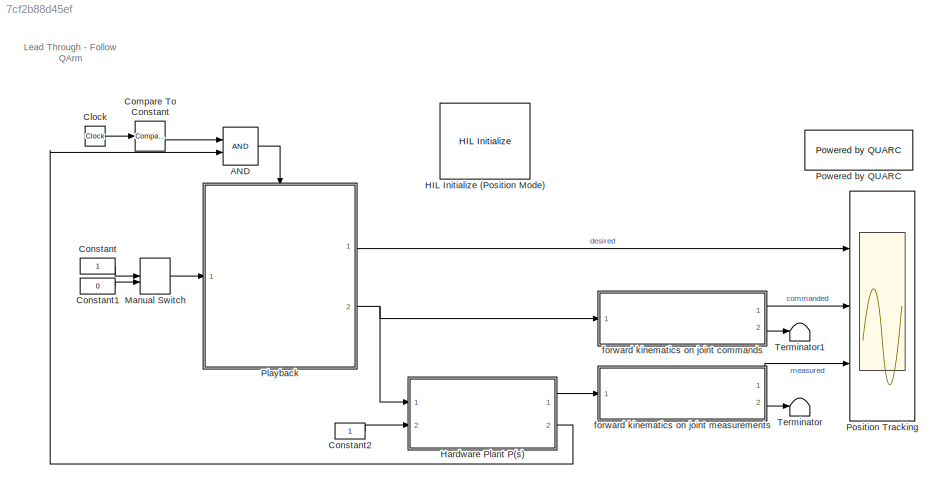
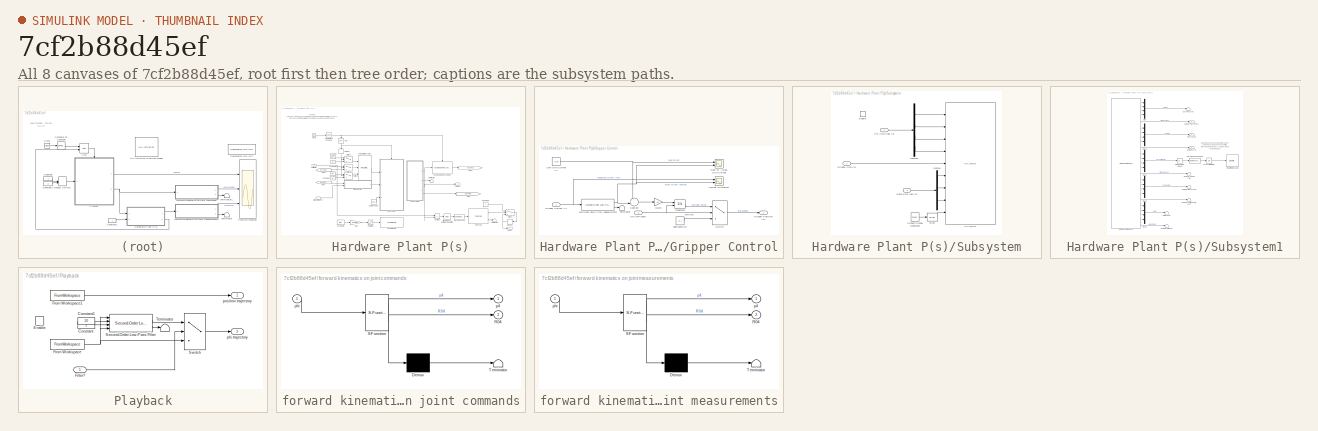
[diagram: thumbnail index - all 8 canvases of the model, root first then tree order]
MODEL slx_7cf2b88d45ef
KIND model
CONFIG AbsTol = auto
CONFIG EnableMultiTasking = on
CONFIG FixedStep = 1/500
CONFIG MaxStep = auto
CONFIG MinStep = auto
CONFIG RelTol = 1e-3
CONFIG SampleTimeConstraint = Unconstrained
CONFIG SolverName = ode4
CONFIG StartTime = 0.0
CONFIG StopTime = inf
BLOCK [Logic] AND
  AllPortsSameDT = off
  IconShape = distinctive
  OutDataTypeStr = boolean
  Ports = [2, 1]
BLOCK [Clock] Clock
BLOCK [Reference] Compare To Constant  REF=simulink/Logic and Bit
Operations/Compare
To Constant
  Ports = [1, 1]
  SourceBlock = simulink/Logic and Bit\nOperations/Compare\nTo Constant
  SourceType = Compare To Constant
BLOCK [Constant] Constant
BLOCK [Constant] Constant1
  Value = 0
BLOCK [Constant] Constant2
BLOCK [Reference] HIL Initialize (Position Mode)  REF=quarc_library/Data Acquisition/Generic/Configuration/HIL Initialize
  AttributesFormatString = %<object_name> (%<board_type>-%<board_number>)
  Ports = []
  Priority = 2
  SourceBlock = quarc_library/Data Acquisition/Generic/Configuration/HIL Initialize
  SourceProductName = QUARC Targets
  SourceType = HIL Initialize
  UserDataPersistent = on
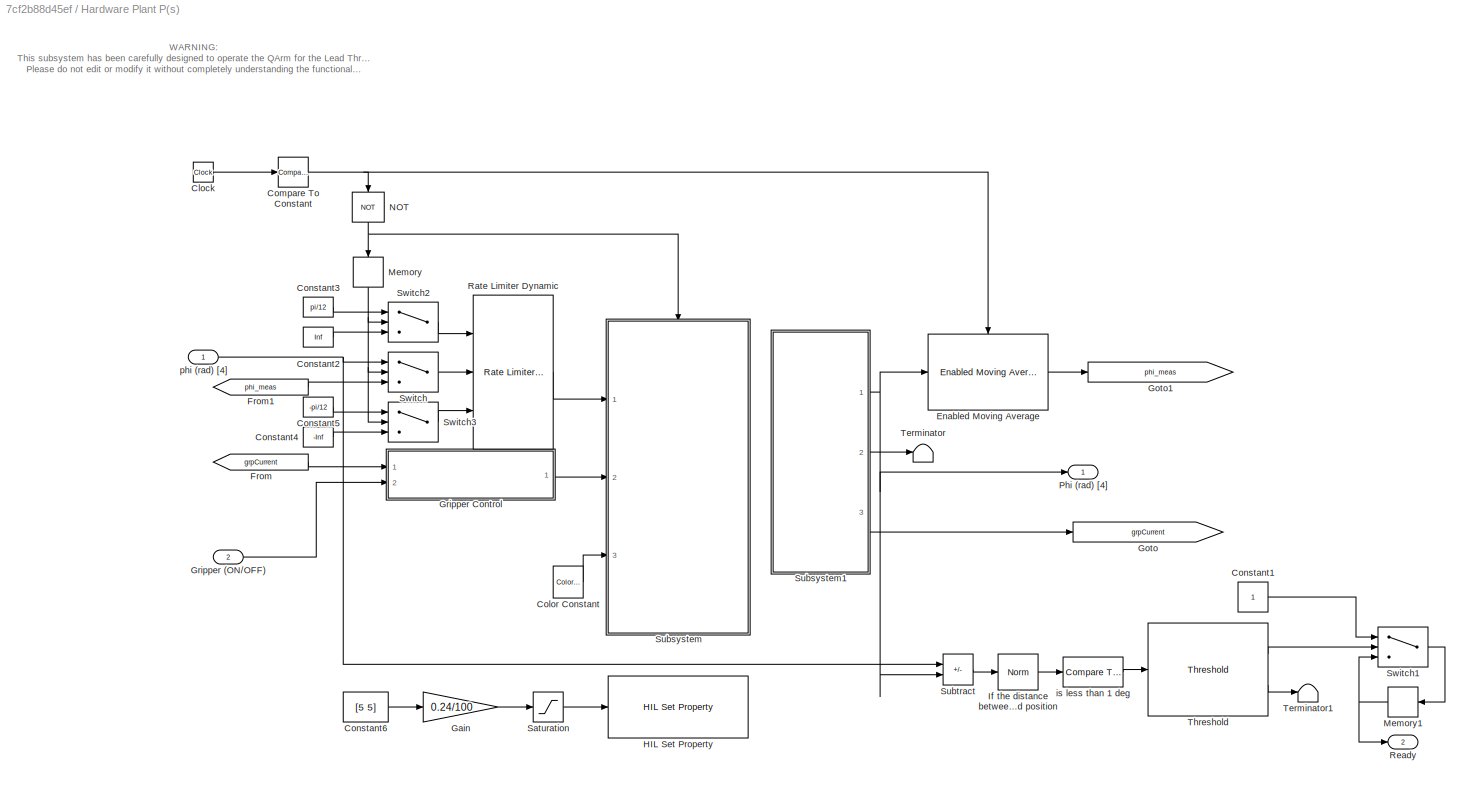
BLOCK [SubSystem] Hardware Plant P(s)
  Permissions = NoReadOrWrite
  Ports = [2, 2]
BLOCK [Clock] Hardware Plant P(s)/Clock
BLOCK [Reference] Hardware Plant P(s)/Color Constant  REF=quarc_library/Sources/Signals/Color Constant
  Ports = [0, 1]
  SourceBlock = quarc_library/Sources/Signals/Color Constant
  SourceProductName = QUARC Targets
  SourceType = Color Constant
BLOCK [Reference] Hardware Plant P(s)/Compare To Constant  REF=simulink/Logic and Bit
Operations/Compare
To Constant
  Ports = [1, 1]
  SourceBlock = simulink/Logic and Bit\nOperations/Compare\nTo Constant
  SourceType = Compare To Constant
BLOCK [Constant] Hardware Plant P(s)/Constant1
BLOCK [Constant] Hardware Plant P(s)/Constant2
  Value = Inf
BLOCK [Constant] Hardware Plant P(s)/Constant3
  Value = pi/12
BLOCK [Constant] Hardware Plant P(s)/Constant4
  Value = -Inf
BLOCK [Constant] Hardware Plant P(s)/Constant5
  Value = -pi/12
BLOCK [Constant] Hardware Plant P(s)/Constant6
  Value = [5 5]
BLOCK [Reference] Hardware Plant P(s)/Enabled Moving Average  REF=quarc_library/Discrete/Enabled Moving Average
  Ports = [1, 1, 1]
  SourceBlock = quarc_library/Discrete/Enabled Moving Average
  SourceProductName = QUARC Targets
  SourceType = Enabled Moving Average
BLOCK [From] Hardware Plant P(s)/From
  GotoTag = grpCurrent
BLOCK [From] Hardware Plant P(s)/From1
  GotoTag = phi_meas
  TagVisibility = global
BLOCK [Gain] Hardware Plant P(s)/Gain
  Gain = 0.24/100
BLOCK [Goto] Hardware Plant P(s)/Goto
  GotoTag = grpCurrent
BLOCK [Goto] Hardware Plant P(s)/Goto1
  GotoTag = phi_meas
  TagVisibility = global
BLOCK [Inport] Hardware Plant P(s)/Gripper (ON//OFF)
  NameLocation = top
  Port = 2
BLOCK [SubSystem] Hardware Plant P(s)/Gripper Control
  Ports = [2, 1]
BLOCK [Reference] Hardware Plant P(s)/Gripper Control/2nd Order 25Hz filter (based on FFT)  REF=quarc_library/Continuous/Second-Order
Low-Pass Filter
  Ports = [1, 2]
  SourceBlock = quarc_library/Continuous/Second-Order\nLow-Pass Filter
  SourceProductName = QUARC Targets
  SourceType = Second-Order Low-Pass Filter
BLOCK [Scope] Hardware Plant P(s)/Gripper Control/Current Filteration
  Floating = off
  NameLocation = top
  NumInputPorts = 2
  Ports = [2]
  ScopeSpecificationString = Simulink.scopes.TimeScopeBlockCfg('CurrentConfiguration', extmgr.ConfigurationSet(extmgr.Configuration('Core','General UI',true),extmgr.Configuration('Core','Source UI',true),extmgr.Configuration('Sources','WiredSimulink',true,'DataLoggingVariableName','ScopeData5'),extmgr.Configuration('Visuals','Time Domain',true,'SerializedDisplays',{struct('MinYLimReal','-0.01447','MaxYLimReal','0.62651','YLab...<+1429ch>
BLOCK [Gain] Hardware Plant P(s)/Gripper Control/Gain2
  Gain = 10
BLOCK [Scope] Hardware Plant P(s)/Gripper Control/Goal vs. Actual Grip Current
  Floating = off
  NameLocation = top
  NumInputPorts = 2
  Ports = [2]
  ScopeSpecificationString = Simulink.scopes.TimeScopeBlockCfg('CurrentConfiguration', extmgr.ConfigurationSet(extmgr.Configuration('Core','General UI',true),extmgr.Configuration('Core','Source UI',true),extmgr.Configuration('Sources','WiredSimulink',true,'DataLoggingVariableName','ScopeData4'),extmgr.Configuration('Visuals','Time Domain',true,'SerializedDisplays',{struct('MinYLimReal','0.00229','MaxYLimReal','0.27702','YLabe...<+1426ch>
BLOCK [Inport] Hardware Plant P(s)/Gripper Control/Gripper Current (A)
BLOCK [Outport] Hardware Plant P(s)/Gripper Control/Gripper Position (%)
  VectorParamsAs1DForOutWhenUnconnected = off
BLOCK [Integrator] Hardware Plant P(s)/Gripper Control/Integrator
  ExternalReset = either
  InitialCondition = 0.65
  LimitOutput = on
  LowerSaturationLimit = 0.1
  Ports = [2, 1]
  UpperSaturationLimit = 0.65
BLOCK [Inport] Hardware Plant P(s)/Gripper Control/ON//OFF (bool)
  Port = 2
BLOCK [Constant] Hardware Plant P(s)/Gripper Control/Soft-Grip Current (A)
  Value = 0.25
BLOCK [Sum] Hardware Plant P(s)/Gripper Control/Subtract
  Inputs = +-|
  Ports = [2, 1]
BLOCK [Switch] Hardware Plant P(s)/Gripper Control/Switch
  Criteria = u2 > Threshold
  InputSameDT = off
  SaturateOnIntegerOverflow = off
BLOCK [Terminator] Hardware Plant P(s)/Gripper Control/Terminator
BLOCK [Constant] Hardware Plant P(s)/Gripper Control/open position
  Value = 0.1
BLOCK [Reference] Hardware Plant P(s)/HIL Set Property  REF=quarc_library/Data Acquisition/Generic/Configuration/HIL Set Property
  AttributesFormatString = (%<object_name>)
  Ports = [1]
  SourceBlock = quarc_library/Data Acquisition/Generic/Configuration/HIL Set Property
  SourceProductName = QUARC Targets
  SourceType = HIL Set Property
  UserDataPersistent = on
BLOCK [Reference] Hardware Plant P(s)/If the distance between the measured and desired position   REF=quarc_library/Math Operations/Vectors/Norm
  Ports = [1, 1]
  SourceBlock = quarc_library/Math Operations/Vectors/Norm
  SourceProductName = QUARC Targets
  SourceType = Norm
BLOCK [Memory] Hardware Plant P(s)/Memory
  NameLocation = left
BLOCK [Memory] Hardware Plant P(s)/Memory1
  NameLocation = top
BLOCK [Logic] Hardware Plant P(s)/NOT
  AllPortsSameDT = off
  IconShape = distinctive
  NameLocation = left
  Operator = NOT
  OutDataTypeStr = boolean
  Ports = [1, 1]
BLOCK [Outport] Hardware Plant P(s)/Phi (rad) [4]
  VectorParamsAs1DForOutWhenUnconnected = off
BLOCK [Reference] Hardware Plant P(s)/Rate Limiter Dynamic  REF=simulink/Discontinuities/Rate Limiter
Dynamic
  Ports = [3, 1]
  SourceBlock = simulink/Discontinuities/Rate Limiter\nDynamic
  SourceType = Rate Limiter Dynamic
BLOCK [Outport] Hardware Plant P(s)/Ready
  Port = 2
  VectorParamsAs1DForOutWhenUnconnected = off
BLOCK [Saturate] Hardware Plant P(s)/Saturation
  LowerLimit = [0 0]
  UpperLimit = [0.24 0.24]
BLOCK [SubSystem] Hardware Plant P(s)/Subsystem
  Ports = [3, 0, 1]
BLOCK [Inport] Hardware Plant P(s)/Subsystem/Base RGB Led (%)
  Port = 3
BLOCK [Bias] Hardware Plant P(s)/Subsystem/Bias
  Bias = 0.5
  SaturateOnIntegerOverflow = off
BLOCK [Demux] Hardware Plant P(s)/Subsystem/Demux
  Outputs = 3
  Ports = [1, 3]
BLOCK [Demux] Hardware Plant P(s)/Subsystem/Demux1
  Ports = [1, 4]
BLOCK [EnablePort] Hardware Plant P(s)/Subsystem/Enable
  Ports = []
BLOCK [Inport] Hardware Plant P(s)/Subsystem/Gripper Cmd (%)
  Port = 2
BLOCK [Reference] Hardware Plant P(s)/Subsystem/HIL Write  REF=quarc_library/Data Acquisition/Generic/Immediate I//O/HIL Write
  AttributesFormatString = (%<object_name>)
  Ports = [9]
  SourceBlock = quarc_library/Data Acquisition/Generic/Immediate I//O/HIL Write
  SourceProductName = QUARC Targets
  SourceType = HIL Write
  UserDataPersistent = on
BLOCK [Inport] Hardware Plant P(s)/Subsystem/Phi Cmd (rad) [4]
BLOCK [Reference] Hardware Plant P(s)/Subsystem/Smooth Signal Generator  REF=quarc_library/Sources/Signals/Smooth Signal
Generator
  Ports = [0, 1]
  SourceBlock = quarc_library/Sources/Signals/Smooth Signal\nGenerator
  SourceProductName = QUARC Targets
  SourceType = Smooth Signal Generator
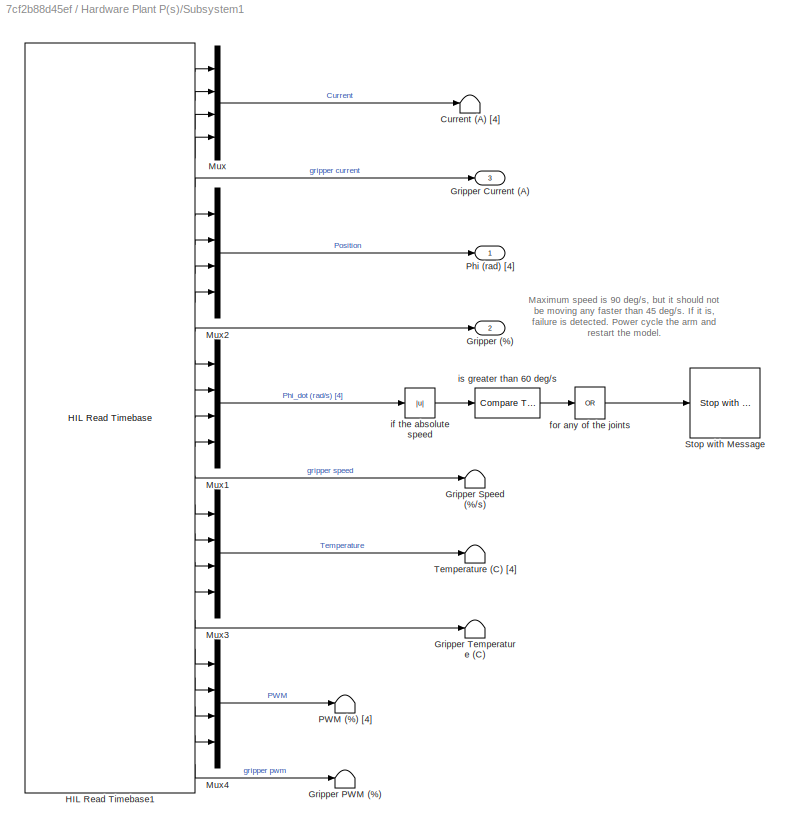
BLOCK [SubSystem] Hardware Plant P(s)/Subsystem1
  Ports = [0, 3]
BLOCK [Terminator] Hardware Plant P(s)/Subsystem1/Current (A) [4]
BLOCK [Outport] Hardware Plant P(s)/Subsystem1/Gripper (%)
  Port = 2
  VectorParamsAs1DForOutWhenUnconnected = off
BLOCK [Outport] Hardware Plant P(s)/Subsystem1/Gripper Current (A)
  Port = 3
  VectorParamsAs1DForOutWhenUnconnected = off
BLOCK [Terminator] Hardware Plant P(s)/Subsystem1/Gripper PWM (%)
BLOCK [Terminator] Hardware Plant P(s)/Subsystem1/Gripper Speed (%//s)
BLOCK [Terminator] Hardware Plant P(s)/Subsystem1/Gripper Temperature (C)
BLOCK [Reference] Hardware Plant P(s)/Subsystem1/HIL Read Timebase1  REF=quarc_library/Data Acquisition/Generic/Timebases/HIL Read
Timebase
  AttributesFormatString = (%<object_name>)
  Ports = [0, 25]
  SourceBlock = quarc_library/Data Acquisition/Generic/Timebases/HIL Read\nTimebase
  SourceProductName = QUARC Targets
  SourceType = HIL Read Timebase
  UserDataPersistent = on
BLOCK [Mux] Hardware Plant P(s)/Subsystem1/Mux
  DisplayOption = bar
  Ports = [4, 1]
BLOCK [Mux] Hardware Plant P(s)/Subsystem1/Mux1
  DisplayOption = bar
  Ports = [4, 1]
BLOCK [Mux] Hardware Plant P(s)/Subsystem1/Mux2
  DisplayOption = bar
  Ports = [4, 1]
BLOCK [Mux] Hardware Plant P(s)/Subsystem1/Mux3
  DisplayOption = bar
  Ports = [4, 1]
BLOCK [Mux] Hardware Plant P(s)/Subsystem1/Mux4
  DisplayOption = bar
  Ports = [4, 1]
BLOCK [Terminator] Hardware Plant P(s)/Subsystem1/PWM (%) [4]
BLOCK [Outport] Hardware Plant P(s)/Subsystem1/Phi (rad) [4]
  VectorParamsAs1DForOutWhenUnconnected = off
BLOCK [Reference] Hardware Plant P(s)/Subsystem1/Stop with Message  REF=quarc_library/Sinks/Error Handling/Stop with Message
  AttributesFormatString = "%<message>"
  Ports = [1]
  SourceBlock = quarc_library/Sinks/Error Handling/Stop with Message
  SourceProductName = QUARC Targets
  SourceType = Stop with Message
BLOCK [Terminator] Hardware Plant P(s)/Subsystem1/Temperature (C) [4]
BLOCK [Logic] Hardware Plant P(s)/Subsystem1/for any of the joints
  AllPortsSameDT = off
  IconShape = distinctive
  Inputs = 1
  Operator = OR
  OutDataTypeStr = boolean
  Ports = [1, 1]
BLOCK [Abs] Hardware Plant P(s)/Subsystem1/if the absolute speed
  SaturateOnIntegerOverflow = off
BLOCK [Reference] Hardware Plant P(s)/Subsystem1/is greater than 60 deg//s  REF=simulink/Logic and Bit
Operations/Compare
To Constant
  Ports = [1, 1]
  SourceBlock = simulink/Logic and Bit\nOperations/Compare\nTo Constant
  SourceType = Compare To Constant
BLOCK [Sum] Hardware Plant P(s)/Subtract
  IconShape = rectangular
  Inputs = +-
  Ports = [2, 1]
BLOCK [Switch] Hardware Plant P(s)/Switch
  Criteria = u2 > Threshold
  InputSameDT = off
  SaturateOnIntegerOverflow = off
BLOCK [Switch] Hardware Plant P(s)/Switch1
  Criteria = u2 > Threshold
  InputSameDT = off
  SaturateOnIntegerOverflow = off
BLOCK [Switch] Hardware Plant P(s)/Switch2
  Criteria = u2 > Threshold
  InputSameDT = off
  SaturateOnIntegerOverflow = off
BLOCK [Switch] Hardware Plant P(s)/Switch3
  Criteria = u2 > Threshold
  InputSameDT = off
  SaturateOnIntegerOverflow = off
BLOCK [Terminator] Hardware Plant P(s)/Terminator
BLOCK [Terminator] Hardware Plant P(s)/Terminator1
BLOCK [Reference] Hardware Plant P(s)/Threshold  REF=quarc_library/Discontinuities/Threshold
  Ports = [1, 2]
  SourceBlock = quarc_library/Discontinuities/Threshold
  SourceProductName = QUARC Targets
  SourceType = Threshold
BLOCK [Reference] Hardware Plant P(s)/is less than 1 deg  REF=simulink/Logic and Bit
Operations/Compare
To Constant
  Ports = [1, 1]
  SourceBlock = simulink/Logic and Bit\nOperations/Compare\nTo Constant
  SourceType = Compare To Constant
BLOCK [Inport] Hardware Plant P(s)/phi (rad) [4]
  NameLocation = top
BLOCK [ManualSwitch] Manual Switch
  CurrentSetting = 0
BLOCK [SubSystem] Playback
  Ports = [1, 2, 1]
BLOCK [Constant] Playback/Constant
BLOCK [Constant] Playback/Constant1
  Value = 10
BLOCK [EnablePort] Playback/Enable
  Ports = []
BLOCK [Inport] Playback/Filter?
BLOCK [FromWorkspace] Playback/From Workspace
  Interpolate = off
  OutputAfterFinalValue = Cyclic repetition
  SampleTime = qc_get_step_size
  VariableName = phi_trajectory
BLOCK [FromWorkspace] Playback/From Workspace1
  Interpolate = off
  OutputAfterFinalValue = Cyclic repetition
  SampleTime = qc_get_step_size
  VariableName = p_trajectory
BLOCK [Reference] Playback/Second-Order Low-Pass Filter  REF=quarc_library/Continuous/Second-Order
Low-Pass Filter
  Ports = [4, 2]
  SourceBlock = quarc_library/Continuous/Second-Order\nLow-Pass Filter
  SourceProductName = QUARC Targets
  SourceType = Second-Order Low-Pass Filter
BLOCK [Switch] Playback/Switch
  Criteria = u2 > Threshold
  InputSameDT = off
  SaturateOnIntegerOverflow = off
BLOCK [Terminator] Playback/Terminator
BLOCK [Outport] Playback/phi trajectory
  InitialOutput = phi_trajectory.signals.values(1,:)
  Port = 2
  VectorParamsAs1DForOutWhenUnconnected = off
BLOCK [Outport] Playback/position trajectory
  InitialOutput = p_trajectory.signals.values(1,:)
  VectorParamsAs1DForOutWhenUnconnected = off
BLOCK [Scope] Position Tracking
  Floating = off
  NumInputPorts = 3
  Ports = [3]
  ScopeSpecificationString = Simulink.scopes.TimeScopeBlockCfg('CurrentConfiguration', extmgr.ConfigurationSet(extmgr.Configuration('Core','General UI',true),extmgr.Configuration('Core','Source UI',true),extmgr.Configuration('Sources','WiredSimulink',true),extmgr.Configuration('Visuals','Time Domain',true,'SerializedDisplays',{struct('MinYLimReal','-0.08875','MaxYLimReal','0.70784','YLabelReal','','MinYLimMag','0.00000','MaxY...<+2410ch>
BLOCK [Reference] Powered by QUARC  REF=quarc_library/Logos/Powered by QUARC
  Ports = []
  SourceBlock = quarc_library/Logos/Powered by QUARC
  SourceProductName = QUARC Targets
  SourceType = Powered by QUARC
BLOCK [Terminator] Terminator
BLOCK [Terminator] Terminator1
BLOCK [SubSystem] forward kinematics on joint commands
  ErrorFcn = Stateflow.Translate.translate
  PermitHierarchicalResolution = ExplicitOnly
  Ports = [1, 2]
  SFBlockType = MATLAB Function
  TreatAsAtomicUnit = on
BLOCK [Demux] forward kinematics on joint commands/ Demux 
  Outputs = 1
  Ports = [1, 1]
BLOCK [S-Function] forward kinematics on joint commands/ SFunction 
  EnableBusSupport = off
  FunctionName = sf_sfun
  PortCounts = [1 3]
  Ports = [1, 3]
  SFcnIsStateOwnerBlock = off
  SFunctionDeploymentMode = off
  Tag = Stateflow S-Function 1
BLOCK [Terminator] forward kinematics on joint commands/ Terminator 
BLOCK [Outport] forward kinematics on joint commands/R04
  Port = 2
  VectorParamsAs1DForOutWhenUnconnected = off
BLOCK [Outport] forward kinematics on joint commands/p4
  VectorParamsAs1DForOutWhenUnconnected = off
BLOCK [Inport] forward kinematics on joint commands/phi
BLOCK [SubSystem] forward kinematics on joint measurements
  ErrorFcn = Stateflow.Translate.translate
  PermitHierarchicalResolution = ExplicitOnly
  Ports = [1, 2]
  SFBlockType = MATLAB Function
  TreatAsAtomicUnit = on
BLOCK [Demux] forward kinematics on joint measurements/ Demux 
  Outputs = 1
  Ports = [1, 1]
BLOCK [S-Function] forward kinematics on joint measurements/ SFunction 
  EnableBusSupport = off
  FunctionName = sf_sfun
  PortCounts = [1 3]
  Ports = [1, 3]
  SFcnIsStateOwnerBlock = off
  SFunctionDeploymentMode = off
  Tag = Stateflow S-Function 2
BLOCK [Terminator] forward kinematics on joint measurements/ Terminator 
BLOCK [Outport] forward kinematics on joint measurements/R04
  Port = 2
  VectorParamsAs1DForOutWhenUnconnected = off
BLOCK [Outport] forward kinematics on joint measurements/p4
  VectorParamsAs1DForOutWhenUnconnected = off
BLOCK [Inport] forward kinematics on joint measurements/phi
ANNOTATION (root): Lead Through - Follow QArm
ANNOTATION Hardware Plant P(s): WARNING: This subsystem has been carefully designed to operate the QArm for the Lead Through Follow lab example. Please do not edit or modify it without completely understanding the functionality or implementation.
ANNOTATION Hardware Plant P(s)/Subsystem1: Maximum speed is 90 deg/s, but it should not be moving any faster than 45 deg/s. If it is, failure is detected. Power cycle the arm and restart the model.
LINE AND:1 -> Playback:enable
LINE Clock:1 -> Compare To Constant:1
LINE Compare To Constant:1 -> AND:1
LINE Constant1:1 -> Manual Switch:2
LINE Constant2:1 -> Hardware Plant P(s):2
LINE Constant:1 -> Manual Switch:1
LINE Hardware Plant P(s)/Clock:1 -> Hardware Plant P(s)/Compare To Constant:1
LINE Hardware Plant P(s)/Color Constant:1 -> Hardware Plant P(s)/Subsystem:3
NET Hardware Plant P(s)/Compare To Constant:1 -> Hardware Plant P(s)/Enabled Moving Average:enable, Hardware Plant P(s)/NOT:1
LINE Hardware Plant P(s)/Constant1:1 -> Hardware Plant P(s)/Switch1:1
LINE Hardware Plant P(s)/Constant2:1 -> Hardware Plant P(s)/Switch2:3
LINE Hardware Plant P(s)/Constant3:1 -> Hardware Plant P(s)/Switch2:1
LINE Hardware Plant P(s)/Constant4:1 -> Hardware Plant P(s)/Switch3:3
LINE Hardware Plant P(s)/Constant5:1 -> Hardware Plant P(s)/Switch3:1
LINE Hardware Plant P(s)/Constant6:1 -> Hardware Plant P(s)/Gain:1
LINE Hardware Plant P(s)/Enabled Moving Average:1 -> Hardware Plant P(s)/Goto1:1
LINE Hardware Plant P(s)/From1:1 -> Hardware Plant P(s)/Switch:3
LINE Hardware Plant P(s)/From:1 -> Hardware Plant P(s)/Gripper Control:1
LINE Hardware Plant P(s)/Gain:1 -> Hardware Plant P(s)/Saturation:1
LINE Hardware Plant P(s)/Gripper (ON//OFF):1 -> Hardware Plant P(s)/Gripper Control:2
NET Hardware Plant P(s)/Gripper Control/2nd Order 25Hz filter (based on FFT):1 -> Hardware Plant P(s)/Gripper Control/Current Filteration:2, Hardware Plant P(s)/Gripper Control/Goal vs. Actual Grip Current:2, Hardware Plant P(s)/Gripper Control/Subtract:2
LINE Hardware Plant P(s)/Gripper Control/2nd Order 25Hz filter (based on FFT):2 -> Hardware Plant P(s)/Gripper Control/Terminator:1
LINE Hardware Plant P(s)/Gripper Control/Gain2:1 -> Hardware Plant P(s)/Gripper Control/Integrator:1
NET Hardware Plant P(s)/Gripper Control/Gripper Current (A):1 -> Hardware Plant P(s)/Gripper Control/2nd Order 25Hz filter (based on FFT):1, Hardware Plant P(s)/Gripper Control/Current Filteration:1
LINE Hardware Plant P(s)/Gripper Control/Integrator:1 -> Hardware Plant P(s)/Gripper Control/Switch:1
NET Hardware Plant P(s)/Gripper Control/ON//OFF (bool):1 -> Hardware Plant P(s)/Gripper Control/Integrator:2, Hardware Plant P(s)/Gripper Control/Switch:2
NET Hardware Plant P(s)/Gripper Control/Soft-Grip Current (A):1 -> Hardware Plant P(s)/Gripper Control/Goal vs. Actual Grip Current:1, Hardware Plant P(s)/Gripper Control/Subtract:1
LINE Hardware Plant P(s)/Gripper Control/Subtract:1 -> Hardware Plant P(s)/Gripper Control/Gain2:1
LINE Hardware Plant P(s)/Gripper Control/Switch:1 -> Hardware Plant P(s)/Gripper Control/Gripper Position (%):1
LINE Hardware Plant P(s)/Gripper Control/open position:1 -> Hardware Plant P(s)/Gripper Control/Switch:3
LINE Hardware Plant P(s)/Gripper Control:1 -> Hardware Plant P(s)/Subsystem:2
LINE Hardware Plant P(s)/If the distance between the measured and desired position :1 -> Hardware Plant P(s)/is less than 1 deg:1
NET Hardware Plant P(s)/Memory1:1 -> Hardware Plant P(s)/Ready:1, Hardware Plant P(s)/Switch1:3
NET Hardware Plant P(s)/Memory:1 -> Hardware Plant P(s)/Switch2:2, Hardware Plant P(s)/Switch3:2, Hardware Plant P(s)/Switch:2
NET Hardware Plant P(s)/NOT:1 -> Hardware Plant P(s)/Memory:1, Hardware Plant P(s)/Subsystem:enable
LINE Hardware Plant P(s)/Rate Limiter Dynamic:1 -> Hardware Plant P(s)/Subsystem:1
LINE Hardware Plant P(s)/Saturation:1 -> Hardware Plant P(s)/HIL Set Property:1
LINE Hardware Plant P(s)/Subsystem/Base RGB Led (%):1 -> Hardware Plant P(s)/Subsystem/Demux:1
LINE Hardware Plant P(s)/Subsystem/Bias:1 -> Hardware Plant P(s)/Subsystem/HIL Write:9
LINE Hardware Plant P(s)/Subsystem/Demux1:1 -> Hardware Plant P(s)/Subsystem/HIL Write:1
LINE Hardware Plant P(s)/Subsystem/Demux1:2 -> Hardware Plant P(s)/Subsystem/HIL Write:2
LINE Hardware Plant P(s)/Subsystem/Demux1:3 -> Hardware Plant P(s)/Subsystem/HIL Write:3
LINE Hardware Plant P(s)/Subsystem/Demux1:4 -> Hardware Plant P(s)/Subsystem/HIL Write:4
LINE Hardware Plant P(s)/Subsystem/Demux:1 -> Hardware Plant P(s)/Subsystem/HIL Write:6
LINE Hardware Plant P(s)/Subsystem/Demux:2 -> Hardware Plant P(s)/Subsystem/HIL Write:7
LINE Hardware Plant P(s)/Subsystem/Demux:3 -> Hardware Plant P(s)/Subsystem/HIL Write:8
LINE Hardware Plant P(s)/Subsystem/Gripper Cmd (%):1 -> Hardware Plant P(s)/Subsystem/HIL Write:5
LINE Hardware Plant P(s)/Subsystem/Phi Cmd (rad) [4]:1 -> Hardware Plant P(s)/Subsystem/Demux1:1
LINE Hardware Plant P(s)/Subsystem/Smooth Signal Generator:1 -> Hardware Plant P(s)/Subsystem/Bias:1
LINE Hardware Plant P(s)/Subsystem1/HIL Read Timebase1:1 -> Hardware Plant P(s)/Subsystem1/Mux:1
LINE Hardware Plant P(s)/Subsystem1/HIL Read Timebase1:10 -> Hardware Plant P(s)/Subsystem1/Gripper (%):1
LINE Hardware Plant P(s)/Subsystem1/HIL Read Timebase1:11 -> Hardware Plant P(s)/Subsystem1/Mux1:1
LINE Hardware Plant P(s)/Subsystem1/HIL Read Timebase1:12 -> Hardware Plant P(s)/Subsystem1/Mux1:2
LINE Hardware Plant P(s)/Subsystem1/HIL Read Timebase1:13 -> Hardware Plant P(s)/Subsystem1/Mux1:3
LINE Hardware Plant P(s)/Subsystem1/HIL Read Timebase1:14 -> Hardware Plant P(s)/Subsystem1/Mux1:4
LINE Hardware Plant P(s)/Subsystem1/HIL Read Timebase1:15 -> Hardware Plant P(s)/Subsystem1/Gripper Speed (%//s):1
LINE Hardware Plant P(s)/Subsystem1/HIL Read Timebase1:16 -> Hardware Plant P(s)/Subsystem1/Mux3:1
LINE Hardware Plant P(s)/Subsystem1/HIL Read Timebase1:17 -> Hardware Plant P(s)/Subsystem1/Mux3:2
LINE Hardware Plant P(s)/Subsystem1/HIL Read Timebase1:18 -> Hardware Plant P(s)/Subsystem1/Mux3:3
LINE Hardware Plant P(s)/Subsystem1/HIL Read Timebase1:19 -> Hardware Plant P(s)/Subsystem1/Mux3:4
LINE Hardware Plant P(s)/Subsystem1/HIL Read Timebase1:2 -> Hardware Plant P(s)/Subsystem1/Mux:2
LINE Hardware Plant P(s)/Subsystem1/HIL Read Timebase1:20 -> Hardware Plant P(s)/Subsystem1/Gripper Temperature (C):1
LINE Hardware Plant P(s)/Subsystem1/HIL Read Timebase1:21 -> Hardware Plant P(s)/Subsystem1/Mux4:1
LINE Hardware Plant P(s)/Subsystem1/HIL Read Timebase1:22 -> Hardware Plant P(s)/Subsystem1/Mux4:2
LINE Hardware Plant P(s)/Subsystem1/HIL Read Timebase1:23 -> Hardware Plant P(s)/Subsystem1/Mux4:3
LINE Hardware Plant P(s)/Subsystem1/HIL Read Timebase1:24 -> Hardware Plant P(s)/Subsystem1/Mux4:4
LINE Hardware Plant P(s)/Subsystem1/HIL Read Timebase1:25 -> Hardware Plant P(s)/Subsystem1/Gripper PWM (%):1
LINE Hardware Plant P(s)/Subsystem1/HIL Read Timebase1:3 -> Hardware Plant P(s)/Subsystem1/Mux:3
LINE Hardware Plant P(s)/Subsystem1/HIL Read Timebase1:4 -> Hardware Plant P(s)/Subsystem1/Mux:4
LINE Hardware Plant P(s)/Subsystem1/HIL Read Timebase1:5 -> Hardware Plant P(s)/Subsystem1/Gripper Current (A):1
LINE Hardware Plant P(s)/Subsystem1/HIL Read Timebase1:6 -> Hardware Plant P(s)/Subsystem1/Mux2:1
LINE Hardware Plant P(s)/Subsystem1/HIL Read Timebase1:7 -> Hardware Plant P(s)/Subsystem1/Mux2:2
LINE Hardware Plant P(s)/Subsystem1/HIL Read Timebase1:8 -> Hardware Plant P(s)/Subsystem1/Mux2:3
LINE Hardware Plant P(s)/Subsystem1/HIL Read Timebase1:9 -> Hardware Plant P(s)/Subsystem1/Mux2:4
LINE Hardware Plant P(s)/Subsystem1/Mux1:1 -> Hardware Plant P(s)/Subsystem1/if the absolute speed:1
LINE Hardware Plant P(s)/Subsystem1/Mux2:1 -> Hardware Plant P(s)/Subsystem1/Phi (rad) [4]:1
LINE Hardware Plant P(s)/Subsystem1/Mux3:1 -> Hardware Plant P(s)/Subsystem1/Temperature (C) [4]:1
LINE Hardware Plant P(s)/Subsystem1/Mux4:1 -> Hardware Plant P(s)/Subsystem1/PWM (%) [4]:1
LINE Hardware Plant P(s)/Subsystem1/Mux:1 -> Hardware Plant P(s)/Subsystem1/Current (A) [4]:1
LINE Hardware Plant P(s)/Subsystem1/for any of the joints:1 -> Hardware Plant P(s)/Subsystem1/Stop with Message:1
LINE Hardware Plant P(s)/Subsystem1/if the absolute speed:1 -> Hardware Plant P(s)/Subsystem1/is greater than 60 deg//s:1
LINE Hardware Plant P(s)/Subsystem1/is greater than 60 deg//s:1 -> Hardware Plant P(s)/Subsystem1/for any of the joints:1
NET Hardware Plant P(s)/Subsystem1:1 -> Hardware Plant P(s)/Enabled Moving Average:1, Hardware Plant P(s)/Phi (rad) [4]:1, Hardware Plant P(s)/Subtract:2
LINE Hardware Plant P(s)/Subsystem1:2 -> Hardware Plant P(s)/Terminator:1
LINE Hardware Plant P(s)/Subsystem1:3 -> Hardware Plant P(s)/Goto:1
LINE Hardware Plant P(s)/Subtract:1 -> Hardware Plant P(s)/If the distance between the measured and desired position :1
LINE Hardware Plant P(s)/Switch1:1 -> Hardware Plant P(s)/Memory1:1
LINE Hardware Plant P(s)/Switch2:1 -> Hardware Plant P(s)/Rate Limiter Dynamic:1
LINE Hardware Plant P(s)/Switch3:1 -> Hardware Plant P(s)/Rate Limiter Dynamic:3
LINE Hardware Plant P(s)/Switch:1 -> Hardware Plant P(s)/Rate Limiter Dynamic:2
LINE Hardware Plant P(s)/Threshold:1 -> Hardware Plant P(s)/Switch1:2
LINE Hardware Plant P(s)/Threshold:2 -> Hardware Plant P(s)/Terminator1:1
LINE Hardware Plant P(s)/is less than 1 deg:1 -> Hardware Plant P(s)/Threshold:1
NET Hardware Plant P(s)/phi (rad) [4]:1 -> Hardware Plant P(s)/Subtract:1, Hardware Plant P(s)/Switch:1
LINE Hardware Plant P(s):1 -> forward kinematics on joint measurements:1
LINE Hardware Plant P(s):2 -> AND:2
LINE Manual Switch:1 -> Playback:1
LINE Playback/Constant1:1 -> Playback/Second-Order Low-Pass Filter:2
LINE Playback/Constant:1 -> Playback/Second-Order Low-Pass Filter:3
LINE Playback/Filter?:1 -> Playback/Switch:2
LINE Playback/From Workspace1:1 -> Playback/position trajectory:1
NET Playback/From Workspace:1 -> Playback/Second-Order Low-Pass Filter:1, Playback/Second-Order Low-Pass Filter:4, Playback/Switch:3
LINE Playback/Second-Order Low-Pass Filter:1 -> Playback/Switch:1
LINE Playback/Second-Order Low-Pass Filter:2 -> Playback/Terminator:1
LINE Playback/Switch:1 -> Playback/phi trajectory:1
LINE Playback:1 -> Position Tracking:1
NET Playback:2 -> Hardware Plant P(s):1, forward kinematics on joint commands:1
LINE forward kinematics on joint commands:1 -> Position Tracking:2
LINE forward kinematics on joint commands:2 -> Terminator1:1
LINE forward kinematics on joint measurements:1 -> Position Tracking:3
LINE forward kinematics on joint measurements:2 -> Terminator:1
note: NET lines group one-source signal fan-out (src -> all destinations, sorted); 1:1 wires keep LINE
CHART forward kinematics on joint commands states=1 transitions=1
  STATE_LABEL 'eML_blk_kernel()'
  STATE_LABEL 'SCRIPT:\nfunction [p4, R04] = qarmForwardKinematics(phi)\n\n%% QUANSER_ARM_FPK\n% v 4.0 - 4th June 2020\n\n% REFERENCE: \n% Chapter 3. Forward Kinematics\n% Robot Dynamics and Control \n% Spong, Vidyasagar\n% 1989\n\n% INPUTS:\n% phi     : Alternate joint angles vector 4 x 1\n\n% OUTPUTS:\n% p4      : End-effector frame {4} position vector expressed in base frame {0}\n% R04     : rotation matrix from end-effector ...<+1865ch>'
CHART forward kinematics on joint measurements states=1 transitions=1
  STATE_LABEL 'eML_blk_kernel()'
  STATE_LABEL 'SCRIPT:\nfunction [p4, R04] = qarmForwardKinematics(phi)\n\n%% QUANSER_ARM_FPK\n% v 4.0 - 4th June 2020\n\n% REFERENCE: \n% Chapter 3. Forward Kinematics\n% Robot Dynamics and Control \n% Spong, Vidyasagar\n% 1989\n\n% INPUTS:\n% phi     : Alternate joint angles vector 4 x 1\n\n% OUTPUTS:\n% p4      : End-effector frame {4} position vector expressed in base frame {0}\n% R04     : rotation matrix from end-effector ...<+1865ch>'
CHART  states=0 transitions=0
CHART  states=0 transitions=0
